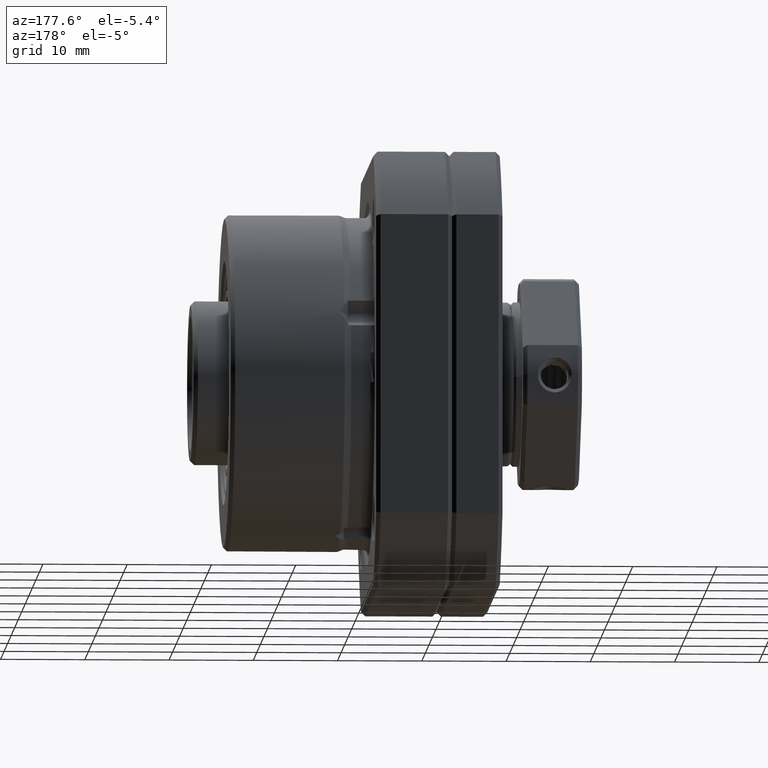
[diagram: clean part render]
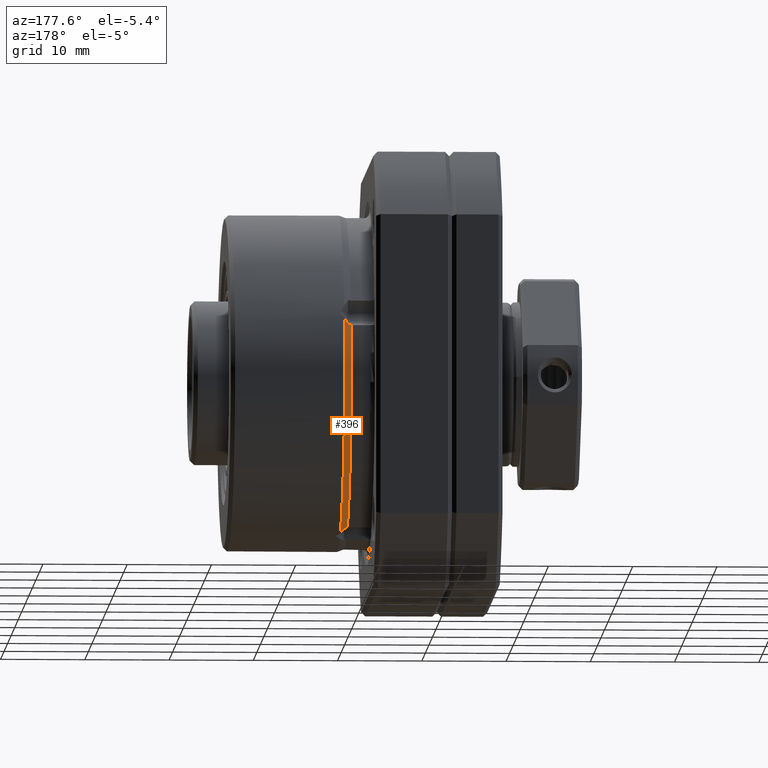
[diagram: same view with one face highlighted and labeled with its STEP entity id]
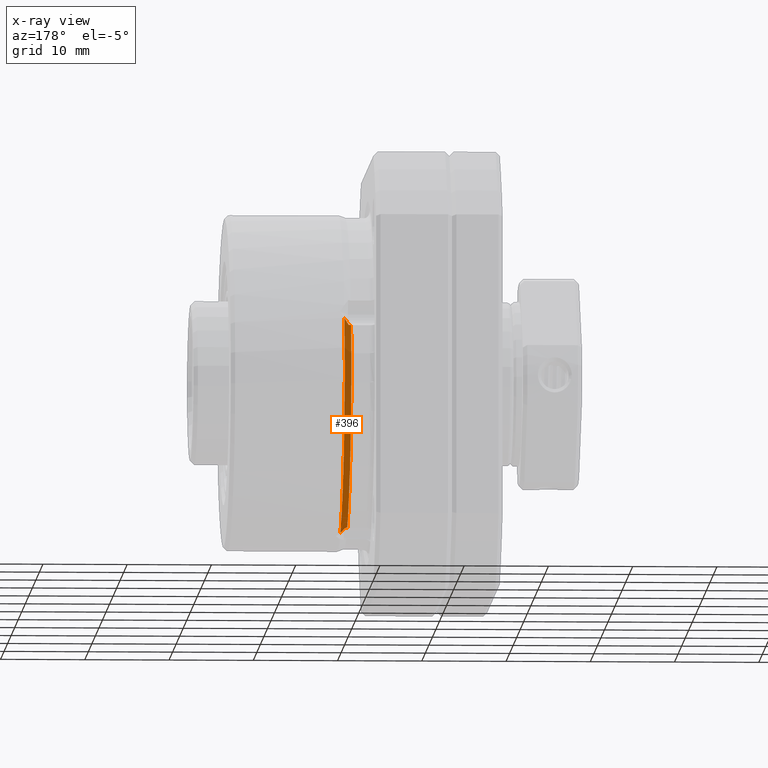
[diagram: x-ray of the same camera — body ghosted, the highlighted face saturated]
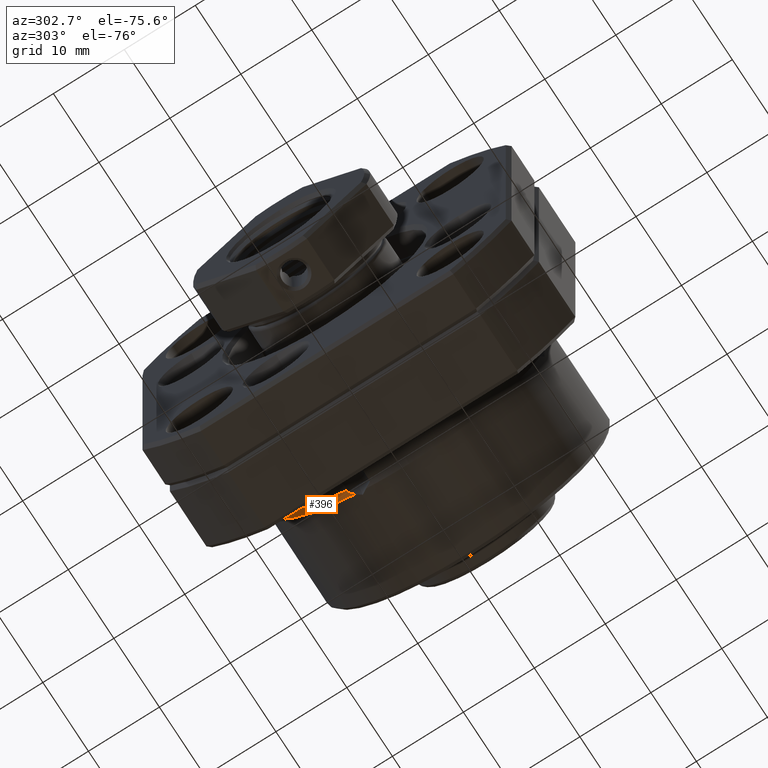
[diagram: same view with one face highlighted and labeled with its STEP entity id]
A machine part, auxiliary view. The second image highlights one B-rep face of the part: STEP entity #396.
The next image is the same camera in x-ray: the body ghosted, the highlighted face saturated — about 0% of this face is hidden behind the body in this view.
A second angle (auxiliary view) of the same face is appended — the face is thin or edge-on in the first view.
In plain terms, the highlighted conical surface has half-angle 20.556 deg.
Its self-contained STEP definition (entity closure, byte-faithful):
#239 = ORIENTED_EDGE ( 'NONE', *, *, #20530, .T. ) ;
#328 = ORIENTED_EDGE ( 'NONE', *, *, #19974, .T. ) ;
#363 = EDGE_CURVE ( 'NONE', #20571, #382, #3379, .T. ) ;
#381 = ORIENTED_EDGE ( 'NONE', *, *, #363, .T. ) ;
#382 = VERTEX_POINT ( 'NONE', #3441 ) ;
#389 = EDGE_LOOP ( 'NONE', ( #328, #239, #381, #403, #411, #402 ) ) ;
#396 = ADVANCED_FACE ( 'NONE', ( #3473 ), #3476, .T. ) ;
#401 = EDGE_CURVE ( 'NONE', #404, #19064, #3464, .T. ) ;
#402 = ORIENTED_EDGE ( 'NONE', *, *, #401, .T. ) ;
#403 = ORIENTED_EDGE ( 'NONE', *, *, #414, .F. ) ;
#404 = VERTEX_POINT ( 'NONE', #3463 ) ;
#411 = ORIENTED_EDGE ( 'NONE', *, *, #413, .T. ) ;
#412 = VERTEX_POINT ( 'NONE', #3457 ) ;
#413 = EDGE_CURVE ( 'NONE', #412, #404, #3505, .T. ) ;
#414 = EDGE_CURVE ( 'NONE', #412, #382, #3499, .T. ) ;
#3375 = CARTESIAN_POINT ( 'NONE',  ( 11.70000000000000300, 8.227194709012712400, -17.89981193253139200 ) ) ;
#3376 = CARTESIAN_POINT ( 'NONE',  ( 11.79995332658202600, 8.247710234679994200, -17.93163461190102100 ) ) ;
#3377 = CARTESIAN_POINT ( 'NONE',  ( 11.89995389329727100, 8.267039693080443300, -17.96401968763582600 ) ) ;
#3378 = CARTESIAN_POINT ( 'NONE',  ( 12.00000000000000000, 8.285207132903311200, -17.99695804892856900 ) ) ;
#3379 = B_SPLINE_CURVE_WITH_KNOTS ( 'NONE', 3,
 ( #3378, #3377, #3376, #3375 ),
 .UNSPECIFIED., .F., .F.,
 ( 4, 4 ),
 ( 2.136539406529816000E-007, 0.0003208424256638343700 ),
 .UNSPECIFIED. ) ;
#3441 = CARTESIAN_POINT ( 'NONE',  ( 11.70000000000000300, 8.227194709012712400, -17.89981193253139200 ) ) ;
#3457 = CARTESIAN_POINT ( 'NONE',  ( 11.70000000000000300, 19.00039028522252600, 5.203380536653213500 ) ) ;
#3458 = CARTESIAN_POINT ( 'NONE',  ( 12.49999999999999600, 19.05780471989507100, 6.066306887913375700 ) ) ;
#3459 = CARTESIAN_POINT ( 'NONE',  ( 12.33478213418652900, 19.08257077157812300, 5.784237318754466500 ) ) ;
#3460 = CARTESIAN_POINT ( 'NONE',  ( 12.16740296850586300, 19.10024070745531000, 5.502990749091487100 ) ) ;
#3461 = CARTESIAN_POINT ( 'NONE',  ( 12.00000000000000000, 19.11209819514393300, 5.221384761649230400 ) ) ;
#3463 = CARTESIAN_POINT ( 'NONE',  ( 12.00000000000000000, 19.11209819514393300, 5.221384761649230400 ) ) ;
#3464 = B_SPLINE_CURVE_WITH_KNOTS ( 'NONE', 3,
 ( #3461, #3460, #3459, #3458 ),
 .UNSPECIFIED., .F., .F.,
 ( 4, 4 ),
 ( 3.915820319776261800E-007, 0.0009836724070783867300 ),
 .UNSPECIFIED. ) ;
#3466 = DIRECTION ( 'NONE',  ( 0.0000000000000000000, 0.0000000000000000000, -1.000000000000000000 ) ) ;
#3467 = DIRECTION ( 'NONE',  ( 1.000000000000000000, 0.0000000000000000000, 0.0000000000000000000 ) ) ;
#3468 = CARTESIAN_POINT ( 'NONE',  ( 12.49999999999999600, 0.0000000000000000000, 0.0000000000000000000 ) ) ;
#3473 = FACE_OUTER_BOUND ( 'NONE', #389, .T. ) ;
#3475 = AXIS2_PLACEMENT_3D ( 'NONE', #3468, #3467, #3466 ) ;
#3476 = CONICAL_SURFACE ( 'NONE', #3475, 20.00000000000000000, 0.3587706702705760200 ) ;
#3496 = DIRECTION ( 'NONE',  ( 0.0000000000000000000, 0.0000000000000000000, 1.000000000000000000 ) ) ;
#3497 = DIRECTION ( 'NONE',  ( -1.000000000000000000, -0.0000000000000000000, -0.0000000000000000000 ) ) ;
#3498 = AXIS2_PLACEMENT_3D ( 'NONE', #3504, #3497, #3496 ) ;
#3499 = CIRCLE ( 'NONE', #3498, 19.69999999999999900 ) ;
#3500 = CARTESIAN_POINT ( 'NONE',  ( 12.00000000000000000, 19.11209819514393300, 5.221384761649230400 ) ) ;
#3501 = CARTESIAN_POINT ( 'NONE',  ( 11.89996125247078300, 19.07519085631541600, 5.214129991133242800 ) ) ;
#3502 = CARTESIAN_POINT ( 'NONE',  ( 11.79994587699373700, 19.03795219790077900, 5.208119602991844800 ) ) ;
#3503 = CARTESIAN_POINT ( 'NONE',  ( 11.70000000000000300, 19.00039028522252600, 5.203380536653213500 ) ) ;
#3504 = CARTESIAN_POINT ( 'NONE',  ( 11.70000000000000300, 0.0000000000000000000, 0.0000000000000000000 ) ) ;
#3505 = B_SPLINE_CURVE_WITH_KNOTS ( 'NONE', 3,
 ( #3503, #3502, #3501, #3500 ),
 .UNSPECIFIED., .F., .F.,
 ( 4, 4 ),
 ( 2.138523942295103800E-007, 0.0003208426241174083600 ),
 .UNSPECIFIED. ) ;
#15915 = CARTESIAN_POINT ( 'NONE',  ( 12.49999999999999600, 19.05780471989507100, 6.066306887913375700 ) ) ;
#17589 = DIRECTION ( 'NONE',  ( 0.0000000000000000000, 0.0000000000000000000, 1.000000000000000000 ) ) ;
#17590 = DIRECTION ( 'NONE',  ( -1.000000000000000000, -0.0000000000000000000, -0.0000000000000000000 ) ) ;
#17591 = CARTESIAN_POINT ( 'NONE',  ( 12.49999999999999600, 0.0000000000000000000, 0.0000000000000000000 ) ) ;
#17592 = AXIS2_PLACEMENT_3D ( 'NONE', #17591, #17590, #17589 ) ;
#17593 = CIRCLE ( 'NONE', #17592, 20.00000000000000000 ) ;
#18512 = CARTESIAN_POINT ( 'NONE',  ( 12.00000000000000000, 8.285207132903311200, -17.99695804892856900 ) ) ;
#18513 = CARTESIAN_POINT ( 'NONE',  ( 12.16739763565275800, 8.061869699855527900, -18.16888204886540900 ) ) ;
#18514 = CARTESIAN_POINT ( 'NONE',  ( 12.33478843430999900, 7.835048350658345500, -18.33613957031716500 ) ) ;
#18515 = CARTESIAN_POINT ( 'NONE',  ( 12.49999999999999600, 7.603060060033597800, -18.49847230782915700 ) ) ;
#18517 = B_SPLINE_CURVE_WITH_KNOTS ( 'NONE', 3,
 ( #18515, #18514, #18513, #18512 ),
 .UNSPECIFIED., .F., .F.,
 ( 4, 4 ),
 ( 3.967799664410567500E-007, 0.0009836794359341549800 ),
 .UNSPECIFIED. ) ;
#18566 = CARTESIAN_POINT ( 'NONE',  ( 12.00000000000000000, 8.285207132903311200, -17.99695804892856900 ) ) ;
#18600 = CARTESIAN_POINT ( 'NONE',  ( 12.49999999999999600, 7.603060060033597800, -18.49847230782915700 ) ) ;
#19064 = VERTEX_POINT ( 'NONE', #15915 ) ;
#19974 = EDGE_CURVE ( 'NONE', #19064, #20582, #17593, .T. ) ;
#20530 = EDGE_CURVE ( 'NONE', #20582, #20571, #18517, .T. ) ;
#20571 = VERTEX_POINT ( 'NONE', #18566 ) ;
#20582 = VERTEX_POINT ( 'NONE', #18600 ) ;